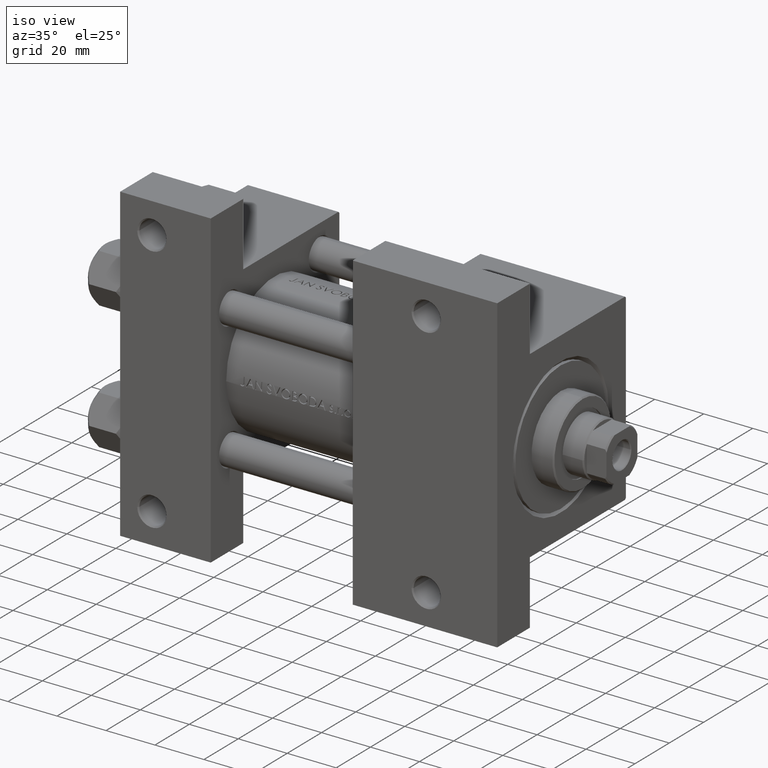
[diagram: clean part render]
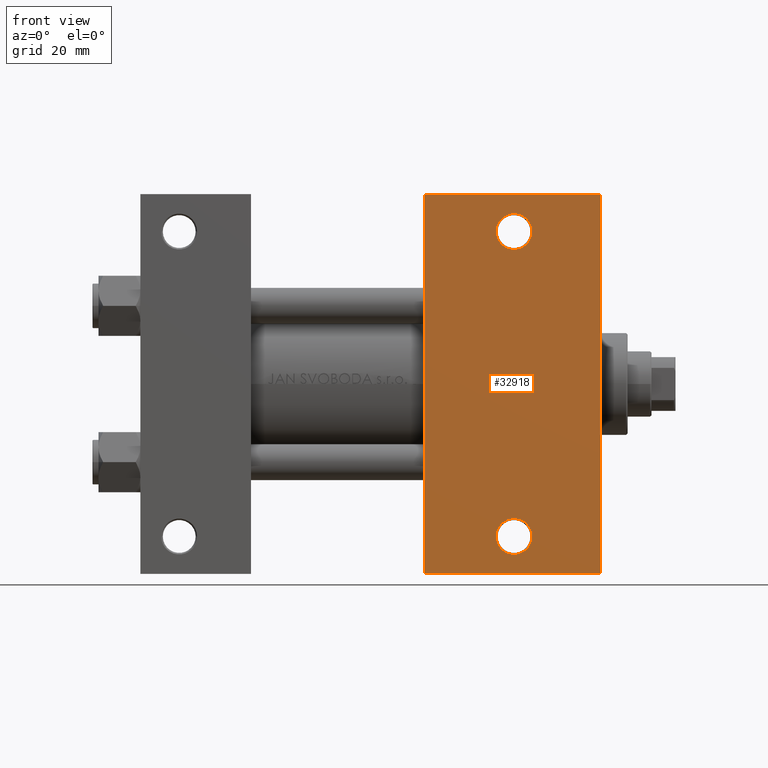
[diagram: tour spotlight — one face highlighted and labeled with its STEP entity id]
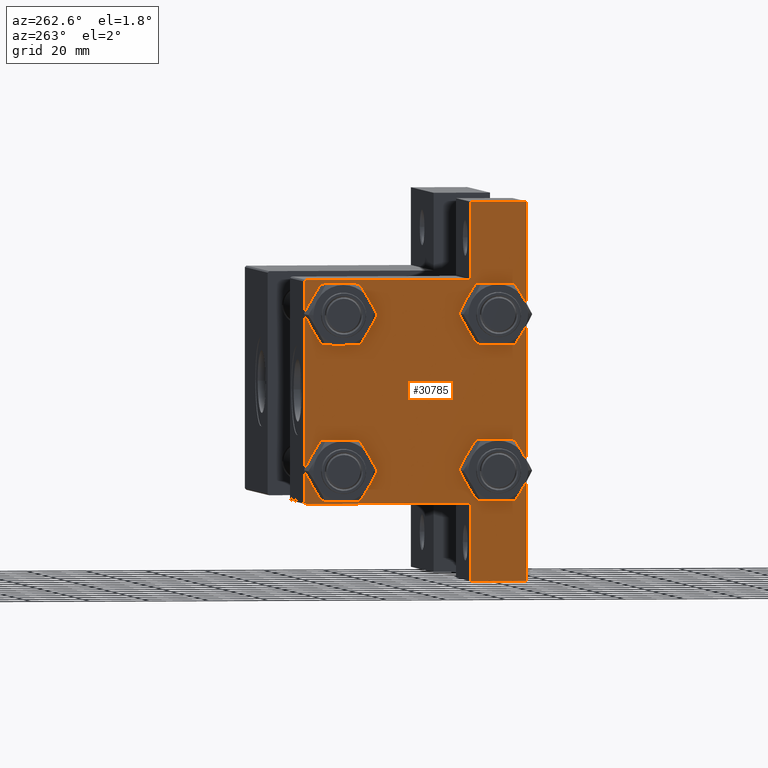
[diagram: tour spotlight — one face highlighted and labeled with its STEP entity id]
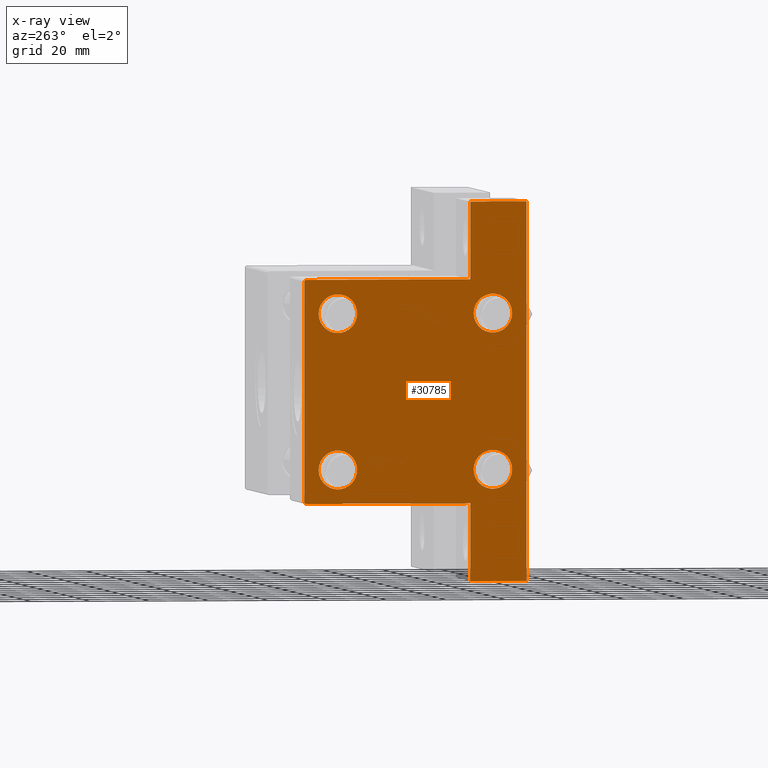
[diagram: x-ray of the same camera — body ghosted, this tour face saturated]
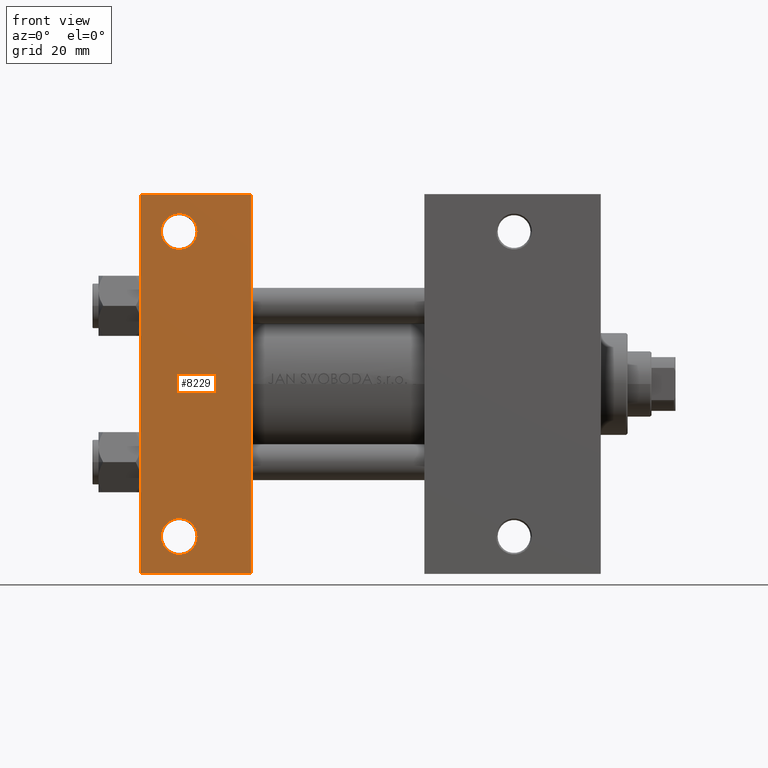
[diagram: tour spotlight — one face highlighted and labeled with its STEP entity id]
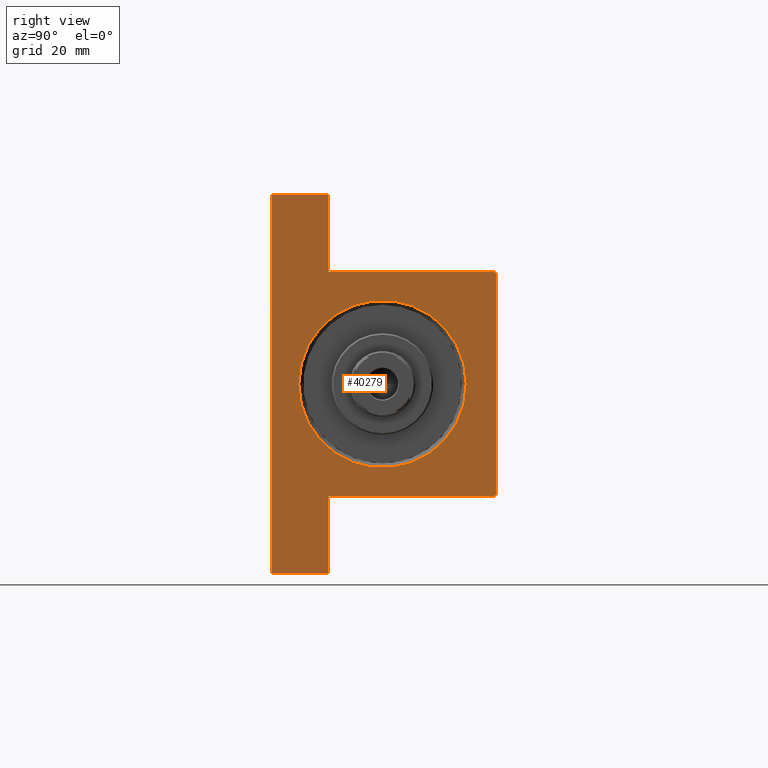
[diagram: tour spotlight — one face highlighted and labeled with its STEP entity id]
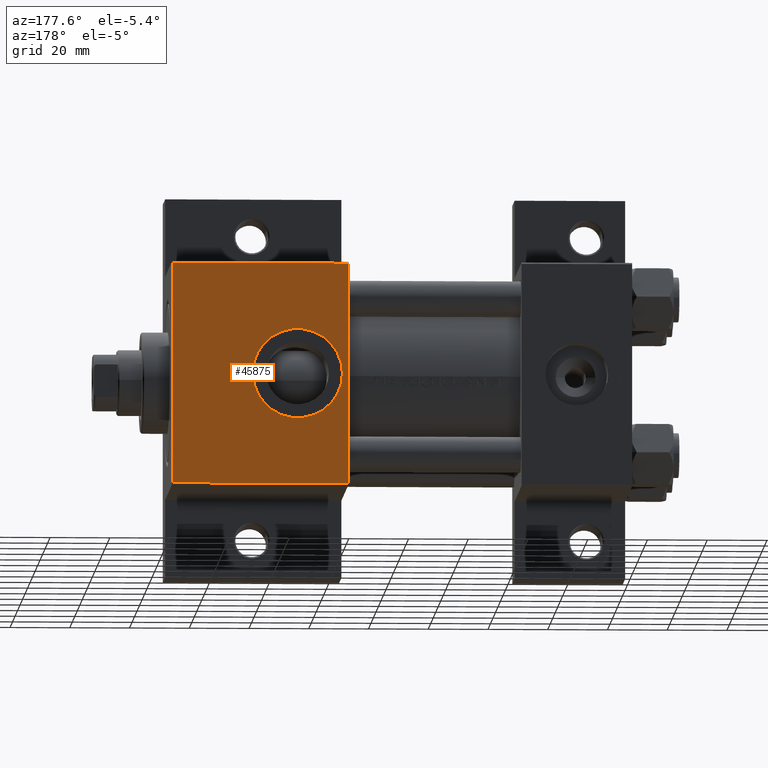
[diagram: tour spotlight — one face highlighted and labeled with its STEP entity id]
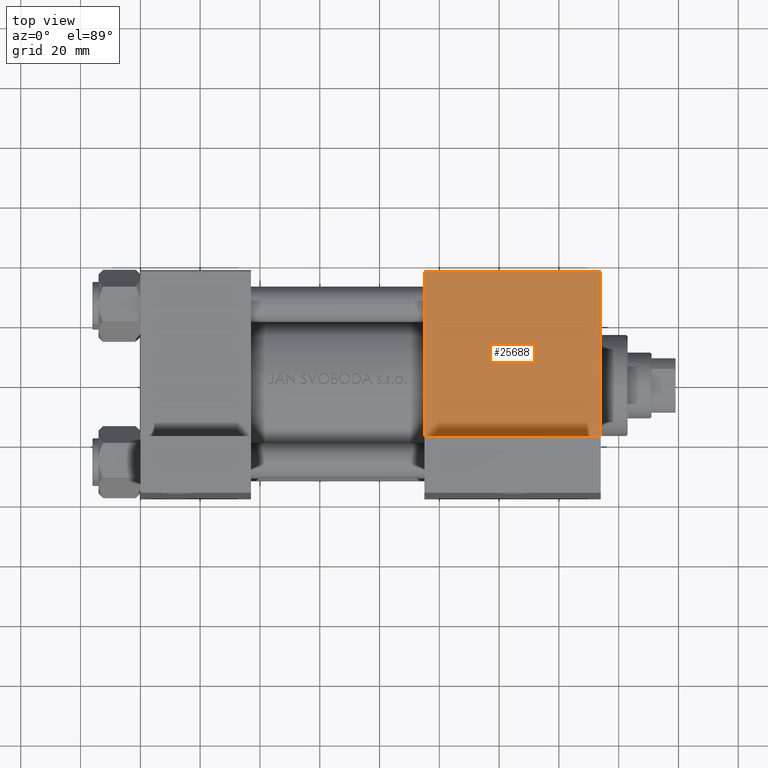
[diagram: tour spotlight — one face highlighted and labeled with its STEP entity id]
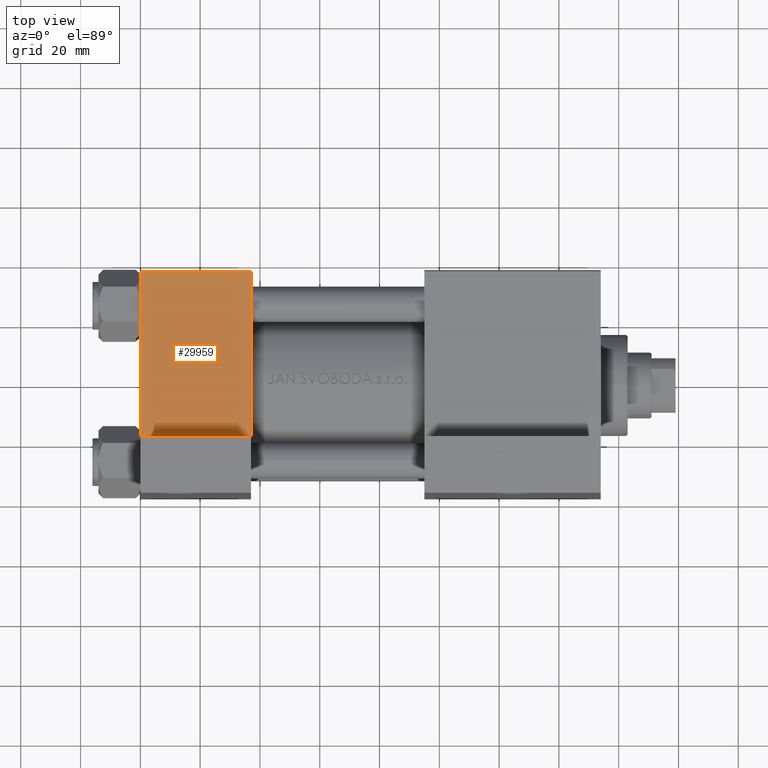
[diagram: tour spotlight — one face highlighted and labeled with its STEP entity id]
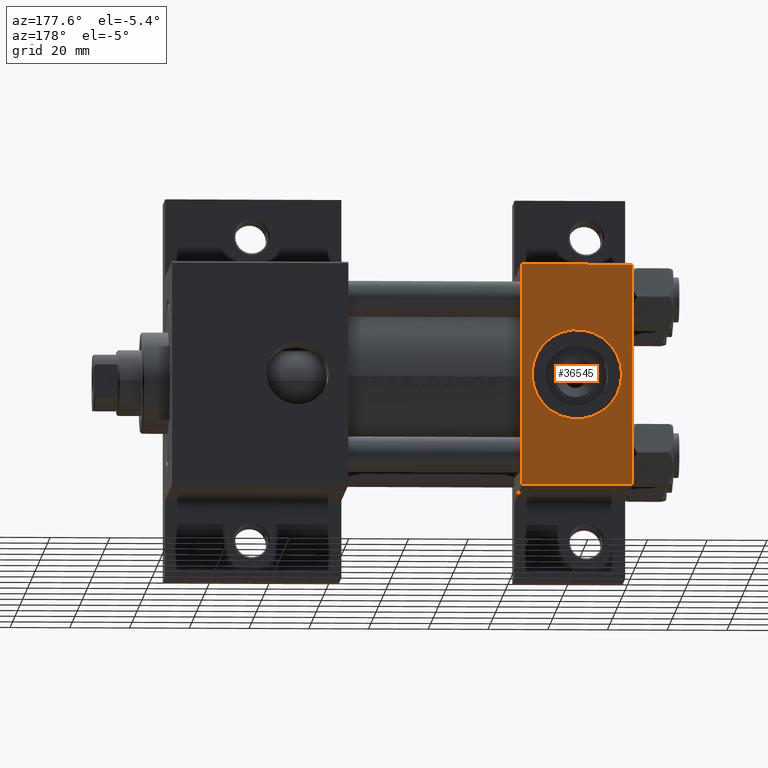
[diagram: tour spotlight — one face highlighted and labeled with its STEP entity id]
A machine part: a face-by-face anatomy tour. The part has 1088 B-rep faces; the first image is the clean iso view, then the 8 largest visible faces are spotlighted one at a time (largest first), each with its STEP entity span.

Face 1 — front view, entity #32918. In plain terms, the highlighted planar face has unit normal (0, -1, 0).
Definition (entity closure, byte-faithful):
#2527 = AXIS2_PLACEMENT_3D ( 'NONE', #36349, #47396, #11578 ) ;
#4443 = CARTESIAN_POINT ( 'NONE',  ( 125.0000000000000000, -51.00000000000000000, -37.50000000000000000 ) ) ;
#4916 = FACE_BOUND ( 'NONE', #6570, .T. ) ;
#5152 = FACE_BOUND ( 'NONE', #27355, .T. ) ;
#5170 = ORIENTED_EDGE ( 'NONE', *, *, #40830, .T. ) ;
#5405 = EDGE_LOOP ( 'NONE', ( #12305, #45235, #9024, #40702 ) ) ;
#6570 = EDGE_LOOP ( 'NONE', ( #44489, #43507 ) ) ;
#6990 = CARTESIAN_POINT ( 'NONE',  ( 154.0000000000000000, 63.50000000000000000, -37.50000000000000000 ) ) ;
#7680 = DIRECTION ( 'NONE',  ( -0.000000000000000000, -0.000000000000000000, 1.000000000000000000 ) ) ;
#8382 = LINE ( 'NONE', #25932, #45486 ) ;
#9024 = ORIENTED_EDGE ( 'NONE', *, *, #20836, .T. ) ;
#10201 = DIRECTION ( 'NONE',  ( 0.000000000000000000, -1.000000000000000000, 0.000000000000000000 ) ) ;
#10609 = LINE ( 'NONE', #25269, #16944 ) ;
#10723 = CIRCLE ( 'NONE', #32972, 5.999499999999990507 ) ;
#10904 = CARTESIAN_POINT ( 'NONE',  ( 153.9999999999999716, -63.50000000000002842, -37.50000000000000000 ) ) ;
#11328 = CARTESIAN_POINT ( 'NONE',  ( 95.00000000000000000, 63.50000000000000000, -37.50000000000000000 ) ) ;
#11502 = DIRECTION ( 'NONE',  ( 0.000000000000000000, -1.000000000000000000, 0.000000000000000000 ) ) ;
#11578 = DIRECTION ( 'NONE',  ( -1.000000000000000000, 0.000000000000000000, 0.000000000000000000 ) ) ;
#11889 = CARTESIAN_POINT ( 'NONE',  ( 154.0000000000000000, 37.50000000000000000, -37.50000000000000000 ) ) ;
#12170 = LINE ( 'NONE', #14275, #32673 ) ;
#12305 = ORIENTED_EDGE ( 'NONE', *, *, #47097, .F. ) ;
#12422 = VERTEX_POINT ( 'NONE', #13920 ) ;
#13229 = AXIS2_PLACEMENT_3D ( 'NONE', #46975, #25118, #28479 ) ;
#13475 = EDGE_CURVE ( 'NONE', #16655, #15010, #10723, .T. ) ;
#13920 = CARTESIAN_POINT ( 'NONE',  ( 130.9994999999999834, 50.99999999999999289, -37.50000000000000000 ) ) ;
#14275 = CARTESIAN_POINT ( 'NONE',  ( 95.00000000000000000, 37.50000000000000000, -37.50000000000000000 ) ) ;
#15010 = VERTEX_POINT ( 'NONE', #47522 ) ;
#15486 = DIRECTION ( 'NONE',  ( -1.000000000000000000, 0.000000000000000000, 0.000000000000000000 ) ) ;
#16655 = VERTEX_POINT ( 'NONE', #27696 ) ;
#16944 = VECTOR ( 'NONE', #33911, 1000.000000000000000 ) ;
#19091 = FACE_OUTER_BOUND ( 'NONE', #5405, .T. ) ;
#19576 = DIRECTION ( 'NONE',  ( 0.000000000000000000, 0.000000000000000000, -1.000000000000000000 ) ) ;
#19605 = VERTEX_POINT ( 'NONE', #6990 ) ;
#20836 = EDGE_CURVE ( 'NONE', #19605, #35602, #8382, .T. ) ;
#21673 = CIRCLE ( 'NONE', #13229, 5.999500000000004718 ) ;
#22102 = VERTEX_POINT ( 'NONE', #42475 ) ;
#22186 = VERTEX_POINT ( 'NONE', #25393 ) ;
#22912 = EDGE_CURVE ( 'NONE', #35602, #22186, #32623, .T. ) ;
#24009 = EDGE_CURVE ( 'NONE', #22102, #12422, #21673, .T. ) ;
#25118 = DIRECTION ( 'NONE',  ( -0.000000000000000000, -0.000000000000000000, 1.000000000000000000 ) ) ;
#25269 = CARTESIAN_POINT ( 'NONE',  ( 95.00000000000000000, 63.50000000000000000, -37.50000000000000000 ) ) ;
#25393 = CARTESIAN_POINT ( 'NONE',  ( 94.99999999999998579, -63.50000000000000000, -37.50000000000000000 ) ) ;
#25932 = CARTESIAN_POINT ( 'NONE',  ( 154.0000000000000000, 37.50000000000000000, -37.50000000000000000 ) ) ;
#27355 = EDGE_LOOP ( 'NONE', ( #28257, #5170 ) ) ;
#27696 = CARTESIAN_POINT ( 'NONE',  ( 119.0005000000000024, -51.00000000000000000, -37.50000000000000000 ) ) ;
#28257 = ORIENTED_EDGE ( 'NONE', *, *, #24009, .T. ) ;
#28479 = DIRECTION ( 'NONE',  ( -1.000000000000000000, 0.000000000000000000, 0.000000000000000000 ) ) ;
#30150 = DIRECTION ( 'NONE',  ( -1.000000000000000000, 4.704334850106596780E-16, -0.000000000000000000 ) ) ;
#30407 = PLANE ( 'NONE',  #41947 ) ;
#32623 = LINE ( 'NONE', #33522, #44649 ) ;
#32673 = VECTOR ( 'NONE', #10201, 1000.000000000000000 ) ;
#32918 = ADVANCED_FACE ( 'NONE', ( #5152, #4916, #19091 ), #30407, .T. ) ;
#32972 = AXIS2_PLACEMENT_3D ( 'NONE', #40598, #7680, #33644 ) ;
#33522 = CARTESIAN_POINT ( 'NONE',  ( 94.99999999999998579, -63.50000000000000000, -37.50000000000000000 ) ) ;
#33644 = DIRECTION ( 'NONE',  ( -1.000000000000000000, 0.000000000000000000, 0.000000000000000000 ) ) ;
#33765 = DIRECTION ( 'NONE',  ( -0.000000000000000000, -0.000000000000000000, 1.000000000000000000 ) ) ;
#33911 = DIRECTION ( 'NONE',  ( 1.000000000000000000, 0.000000000000000000, 0.000000000000000000 ) ) ;
#34003 = DIRECTION ( 'NONE',  ( -1.000000000000000000, 0.000000000000000000, -0.000000000000000000 ) ) ;
#35019 = EDGE_CURVE ( 'NONE', #45558, #19605, #10609, .T. ) ;
#35602 = VERTEX_POINT ( 'NONE', #10904 ) ;
#36349 = CARTESIAN_POINT ( 'NONE',  ( 124.9999999999999858, 50.99999999999999289, -37.50000000000000000 ) ) ;
#36765 = EDGE_CURVE ( 'NONE', #15010, #16655, #36963, .T. ) ;
#36963 = CIRCLE ( 'NONE', #46144, 5.999499999999990507 ) ;
#40144 = CIRCLE ( 'NONE', #2527, 5.999500000000004718 ) ;
#40598 = CARTESIAN_POINT ( 'NONE',  ( 125.0000000000000000, -51.00000000000000000, -37.50000000000000000 ) ) ;
#40702 = ORIENTED_EDGE ( 'NONE', *, *, #22912, .T. ) ;
#40830 = EDGE_CURVE ( 'NONE', #12422, #22102, #40144, .T. ) ;
#41947 = AXIS2_PLACEMENT_3D ( 'NONE', #11889, #19576, #34003 ) ;
#42475 = CARTESIAN_POINT ( 'NONE',  ( 119.0004999999999882, 50.99999999999999289, -37.50000000000000000 ) ) ;
#43507 = ORIENTED_EDGE ( 'NONE', *, *, #36765, .T. ) ;
#44489 = ORIENTED_EDGE ( 'NONE', *, *, #13475, .T. ) ;
#44649 = VECTOR ( 'NONE', #30150, 1000.000000000000000 ) ;
#45235 = ORIENTED_EDGE ( 'NONE', *, *, #35019, .T. ) ;
#45486 = VECTOR ( 'NONE', #11502, 1000.000000000000000 ) ;
#45558 = VERTEX_POINT ( 'NONE', #11328 ) ;
#46144 = AXIS2_PLACEMENT_3D ( 'NONE', #4443, #33765, #15486 ) ;
#46975 = CARTESIAN_POINT ( 'NONE',  ( 124.9999999999999858, 50.99999999999999289, -37.50000000000000000 ) ) ;
#47097 = EDGE_CURVE ( 'NONE', #45558, #22186, #12170, .T. ) ;
#47396 = DIRECTION ( 'NONE',  ( -0.000000000000000000, -0.000000000000000000, 1.000000000000000000 ) ) ;
#47522 = CARTESIAN_POINT ( 'NONE',  ( 130.9994999999999834, -51.00000000000000000, -37.50000000000000000 ) ) ;

Face 2 — auxiliary view, entity #30785. An x-ray twin of the same camera follows (body ghosted, this face saturated) — the face is partly hidden behind the body. In plain terms, the highlighted planar face has unit normal (-1, 0, -0).
Definition (entity closure, byte-faithful):
#145 = AXIS2_PLACEMENT_3D ( 'NONE', #39173, #7207, #14167 ) ;
#707 = DIRECTION ( 'NONE',  ( 0.000000000000000000, 0.000000000000000000, 1.000000000000000000 ) ) ;
#1280 = DIRECTION ( 'NONE',  ( -0.000000000000000000, 0.7071067811865474617, 0.7071067811865474617 ) ) ;
#1307 = EDGE_CURVE ( 'NONE', #15175, #39459, #43674, .T. ) ;
#1597 = DIRECTION ( 'NONE',  ( 1.000000000000000000, -0.000000000000000000, 0.000000000000000000 ) ) ;
#2073 = DIRECTION ( 'NONE',  ( 0.000000000000000000, 0.000000000000000000, 1.000000000000000000 ) ) ;
#2453 = DIRECTION ( 'NONE',  ( 0.000000000000000000, 0.000000000000000000, 1.000000000000000000 ) ) ;
#2894 = CARTESIAN_POINT ( 'NONE',  ( 0.000000000000000000, 37.49999999999999289, 37.50000000000000000 ) ) ;
#3043 = CARTESIAN_POINT ( 'NONE',  ( 3.977209754999744250E-16, -63.49999999999998579, -18.50000000000000355 ) ) ;
#3136 = AXIS2_PLACEMENT_3D ( 'NONE', #31554, #16424, #2453 ) ;
#3223 = ORIENTED_EDGE ( 'NONE', *, *, #39617, .T. ) ;
#3683 = ORIENTED_EDGE ( 'NONE', *, *, #5965, .T. ) ;
#3824 = EDGE_CURVE ( 'NONE', #36729, #33306, #22829, .T. ) ;
#3985 = CIRCLE ( 'NONE', #8594, 6.500000000000015987 ) ;
#4000 = CIRCLE ( 'NONE', #145, 6.500000000000015987 ) ;
#4159 = VECTOR ( 'NONE', #33068, 1000.000000000000000 ) ;
#4213 = ORIENTED_EDGE ( 'NONE', *, *, #1307, .T. ) ;
#4405 = VERTEX_POINT ( 'NONE', #29833 ) ;
#5506 = VERTEX_POINT ( 'NONE', #10010 ) ;
#5657 = EDGE_LOOP ( 'NONE', ( #8075, #32794 ) ) ;
#5764 = VECTOR ( 'NONE', #18205, 1000.000000000000000 ) ;
#5965 = EDGE_CURVE ( 'NONE', #4405, #14966, #33641, .T. ) ;
#6235 = EDGE_CURVE ( 'NONE', #17509, #22536, #38241, .T. ) ;
#6549 = FACE_BOUND ( 'NONE', #11903, .T. ) ;
#6979 = DIRECTION ( 'NONE',  ( 0.000000000000000000, 0.000000000000000000, -1.000000000000000000 ) ) ;
#7022 = FACE_BOUND ( 'NONE', #5657, .T. ) ;
#7207 = DIRECTION ( 'NONE',  ( 1.000000000000000000, -0.000000000000000000, 0.000000000000000000 ) ) ;
#7236 = CARTESIAN_POINT ( 'NONE',  ( 0.000000000000000000, 37.49999999999999289, 37.00000000000000000 ) ) ;
#7984 = AXIS2_PLACEMENT_3D ( 'NONE', #19638, #1597, #2073 ) ;
#8075 = ORIENTED_EDGE ( 'NONE', *, *, #23363, .T. ) ;
#8307 = ORIENTED_EDGE ( 'NONE', *, *, #3824, .T. ) ;
#8594 = AXIS2_PLACEMENT_3D ( 'NONE', #17668, #46752, #9990 ) ;
#9198 = CARTESIAN_POINT ( 'NONE',  ( 1.595073532467135757E-14, 63.50000000000001421, -18.50000000000000355 ) ) ;
#9199 = VECTOR ( 'NONE', #33282, 1000.000000000000000 ) ;
#9990 = DIRECTION ( 'NONE',  ( 0.000000000000000000, 0.000000000000000000, 1.000000000000000000 ) ) ;
#10010 = CARTESIAN_POINT ( 'NONE',  ( 0.000000000000000000, 26.14999999999999858, -32.65000000000001990 ) ) ;
#11566 = EDGE_CURVE ( 'NONE', #39803, #14254, #41008, .T. ) ;
#11872 = VERTEX_POINT ( 'NONE', #22920 ) ;
#11903 = EDGE_LOOP ( 'NONE', ( #3683, #24881 ) ) ;
#12280 = CIRCLE ( 'NONE', #26106, 6.500000000000015987 ) ;
#12577 = LINE ( 'NONE', #23160, #42402 ) ;
#12902 = AXIS2_PLACEMENT_3D ( 'NONE', #20986, #39239, #24825 ) ;
#13549 = EDGE_LOOP ( 'NONE', ( #27393, #3223, #16471, #31063, #35477, #21484, #4213, #34797, #37077, #23841 ) ) ;
#13878 = EDGE_CURVE ( 'NONE', #42190, #29870, #36889, .T. ) ;
#14167 = DIRECTION ( 'NONE',  ( 0.000000000000000000, 0.000000000000000000, 1.000000000000000000 ) ) ;
#14254 = VERTEX_POINT ( 'NONE', #32097 ) ;
#14761 = EDGE_CURVE ( 'NONE', #22536, #17509, #12280, .T. ) ;
#14966 = VERTEX_POINT ( 'NONE', #46571 ) ;
#15175 = VERTEX_POINT ( 'NONE', #19160 ) ;
#15216 = CARTESIAN_POINT ( 'NONE',  ( 0.000000000000000000, 37.49999999999999289, -18.49999999999999645 ) ) ;
#15487 = VECTOR ( 'NONE', #21081, 1000.000000000000000 ) ;
#16320 = VECTOR ( 'NONE', #41413, 1000.000000000000000 ) ;
#16424 = DIRECTION ( 'NONE',  ( 1.000000000000000000, -0.000000000000000000, 0.000000000000000000 ) ) ;
#16471 = ORIENTED_EDGE ( 'NONE', *, *, #13878, .F. ) ;
#16481 = VERTEX_POINT ( 'NONE', #15216 ) ;
#16968 = CARTESIAN_POINT ( 'NONE',  ( 0.000000000000000000, 26.14999999999999858, 26.15000000000000213 ) ) ;
#17350 = EDGE_CURVE ( 'NONE', #33306, #36729, #23873, .T. ) ;
#17509 = VERTEX_POINT ( 'NONE', #32143 ) ;
#17668 = CARTESIAN_POINT ( 'NONE',  ( 0.000000000000000000, 26.14999999999999858, -26.15000000000000213 ) ) ;
#17695 = VECTOR ( 'NONE', #36089, 1000.000000000000114 ) ;
#17913 = CARTESIAN_POINT ( 'NONE',  ( 0.000000000000000000, -37.00000000000000711, 37.49999999999999289 ) ) ;
#17964 = CARTESIAN_POINT ( 'NONE',  ( 0.000000000000000000, 26.14999999999999858, 19.64999999999998437 ) ) ;
#18205 = DIRECTION ( 'NONE',  ( 0.000000000000000000, -1.734723475976806848E-16, -1.000000000000000000 ) ) ;
#19160 = CARTESIAN_POINT ( 'NONE',  ( 1.595073532467135441E-14, 63.50000000000000000, -18.50000000000000355 ) ) ;
#19281 = ORIENTED_EDGE ( 'NONE', *, *, #6235, .T. ) ;
#19517 = VERTEX_POINT ( 'NONE', #7236 ) ;
#19638 = CARTESIAN_POINT ( 'NONE',  ( 0.000000000000000000, -26.14999999999999147, 26.15000000000000924 ) ) ;
#20024 = LINE ( 'NONE', #34459, #30932 ) ;
#20907 = CARTESIAN_POINT ( 'NONE',  ( 0.000000000000000000, -37.50000000000000711, 36.99999999999999289 ) ) ;
#20986 = CARTESIAN_POINT ( 'NONE',  ( 0.000000000000000000, -26.14999999999999147, -26.15000000000000924 ) ) ;
#21081 = DIRECTION ( 'NONE',  ( 4.278042683914906889E-17, -1.000000000000000000, 0.000000000000000000 ) ) ;
#21281 = AXIS2_PLACEMENT_3D ( 'NONE', #16968, #41519, #31409 ) ;
#21484 = ORIENTED_EDGE ( 'NONE', *, *, #24983, .F. ) ;
#21689 = CARTESIAN_POINT ( 'NONE',  ( 0.000000000000000000, 0.000000000000000000, 0.000000000000000000 ) ) ;
#21935 = PLANE ( 'NONE',  #22670 ) ;
#22295 = EDGE_CURVE ( 'NONE', #14254, #30113, #24679, .T. ) ;
#22536 = VERTEX_POINT ( 'NONE', #26425 ) ;
#22633 = LINE ( 'NONE', #9198, #16320 ) ;
#22670 = AXIS2_PLACEMENT_3D ( 'NONE', #21689, #39942, #25774 ) ;
#22829 = CIRCLE ( 'NONE', #21281, 6.500000000000023093 ) ;
#22920 = CARTESIAN_POINT ( 'NONE',  ( 3.977209754999747208E-16, -63.50000000000000000, -37.49999999999999289 ) ) ;
#23160 = CARTESIAN_POINT ( 'NONE',  ( -0.000000000000000000, -37.25000000000000000, 37.25000000000000000 ) ) ;
#23363 = EDGE_CURVE ( 'NONE', #36782, #5506, #4000, .T. ) ;
#23841 = ORIENTED_EDGE ( 'NONE', *, *, #22295, .F. ) ;
#23873 = CIRCLE ( 'NONE', #3136, 6.500000000000023093 ) ;
#24658 = LINE ( 'NONE', #41232, #4159 ) ;
#24679 = LINE ( 'NONE', #3043, #15487 ) ;
#24776 = DIRECTION ( 'NONE',  ( 1.000000000000000000, -0.000000000000000000, 0.000000000000000000 ) ) ;
#24825 = DIRECTION ( 'NONE',  ( 0.000000000000000000, 0.000000000000000000, 1.000000000000000000 ) ) ;
#24881 = ORIENTED_EDGE ( 'NONE', *, *, #28449, .T. ) ;
#24983 = EDGE_CURVE ( 'NONE', #15175, #16481, #22633, .T. ) ;
#25020 = DIRECTION ( 'NONE',  ( 0.000000000000000000, 0.000000000000000000, 1.000000000000000000 ) ) ;
#25774 = DIRECTION ( 'NONE',  ( -0.000000000000000000, 0.000000000000000000, 1.000000000000000000 ) ) ;
#26077 = CARTESIAN_POINT ( 'NONE',  ( 0.000000000000000000, 26.14999999999999858, 32.65000000000002700 ) ) ;
#26106 = AXIS2_PLACEMENT_3D ( 'NONE', #40853, #40138, #707 ) ;
#26425 = CARTESIAN_POINT ( 'NONE',  ( 0.000000000000000000, -26.14999999999999147, -19.64999999999999503 ) ) ;
#27393 = ORIENTED_EDGE ( 'NONE', *, *, #11566, .F. ) ;
#27554 = VECTOR ( 'NONE', #30673, 1000.000000000000000 ) ;
#28395 = CARTESIAN_POINT ( 'NONE',  ( 0.000000000000000000, 37.24999999999999289, 37.24999999999999289 ) ) ;
#28449 = EDGE_CURVE ( 'NONE', #14966, #4405, #28697, .T. ) ;
#28623 = CARTESIAN_POINT ( 'NONE',  ( 0.000000000000000000, -26.14999999999999147, 26.15000000000000924 ) ) ;
#28697 = CIRCLE ( 'NONE', #7984, 6.500000000000023093 ) ;
#29833 = CARTESIAN_POINT ( 'NONE',  ( 0.000000000000000000, -26.14999999999999147, 32.65000000000003411 ) ) ;
#29870 = VERTEX_POINT ( 'NONE', #17913 ) ;
#30113 = VERTEX_POINT ( 'NONE', #44287 ) ;
#30140 = DIRECTION ( 'NONE',  ( 0.000000000000000000, -1.000000000000000000, -9.251858538542972814E-17 ) ) ;
#30540 = EDGE_LOOP ( 'NONE', ( #8307, #45315 ) ) ;
#30673 = DIRECTION ( 'NONE',  ( 0.000000000000000000, 9.251858538542971581E-17, -1.000000000000000000 ) ) ;
#30785 = ADVANCED_FACE ( 'NONE', ( #6549, #32986, #7022, #32751, #36112 ), #21935, .T. ) ;
#30932 = VECTOR ( 'NONE', #30140, 1000.000000000000000 ) ;
#31063 = ORIENTED_EDGE ( 'NONE', *, *, #34964, .T. ) ;
#31318 = EDGE_LOOP ( 'NONE', ( #34742, #19281 ) ) ;
#31342 = CARTESIAN_POINT ( 'NONE',  ( 0.000000000000000000, 26.14999999999999858, -19.64999999999998792 ) ) ;
#31409 = DIRECTION ( 'NONE',  ( 0.000000000000000000, 0.000000000000000000, 1.000000000000000000 ) ) ;
#31554 = CARTESIAN_POINT ( 'NONE',  ( 0.000000000000000000, 26.14999999999999858, 26.15000000000000213 ) ) ;
#32097 = CARTESIAN_POINT ( 'NONE',  ( -7.145701223179004046E-16, -37.50000000000000711, -18.50000000000000355 ) ) ;
#32143 = CARTESIAN_POINT ( 'NONE',  ( 0.000000000000000000, -26.14999999999999147, -32.65000000000002700 ) ) ;
#32751 = FACE_BOUND ( 'NONE', #30540, .T. ) ;
#32794 = ORIENTED_EDGE ( 'NONE', *, *, #37690, .T. ) ;
#32805 = CARTESIAN_POINT ( 'NONE',  ( 0.000000000000000000, 37.49999999999999289, 37.50000000000000000 ) ) ;
#32986 = FACE_BOUND ( 'NONE', #31318, .T. ) ;
#33032 = CARTESIAN_POINT ( 'NONE',  ( 1.595073532467135441E-14, 63.50000000000000000, -37.50000000000002132 ) ) ;
#33068 = DIRECTION ( 'NONE',  ( 0.000000000000000000, -1.734723475976806848E-16, -1.000000000000000000 ) ) ;
#33282 = DIRECTION ( 'NONE',  ( 0.000000000000000000, -1.000000000000000000, -9.251858538542971581E-17 ) ) ;
#33306 = VERTEX_POINT ( 'NONE', #17964 ) ;
#33641 = CIRCLE ( 'NONE', #34393, 6.500000000000023093 ) ;
#34393 = AXIS2_PLACEMENT_3D ( 'NONE', #28623, #24776, #25020 ) ;
#34459 = CARTESIAN_POINT ( 'NONE',  ( 0.000000000000000000, 37.49999999999999289, -37.50000000000000000 ) ) ;
#34742 = ORIENTED_EDGE ( 'NONE', *, *, #14761, .T. ) ;
#34797 = ORIENTED_EDGE ( 'NONE', *, *, #39570, .T. ) ;
#34964 = EDGE_CURVE ( 'NONE', #42190, #19517, #36332, .T. ) ;
#35477 = ORIENTED_EDGE ( 'NONE', *, *, #37131, .T. ) ;
#36089 = DIRECTION ( 'NONE',  ( 0.000000000000000000, 0.7071067811865474617, -0.7071067811865474617 ) ) ;
#36112 = FACE_OUTER_BOUND ( 'NONE', #13549, .T. ) ;
#36243 = CARTESIAN_POINT ( 'NONE',  ( 1.595073532467135441E-14, 63.50000000000001421, 26.72167621838005047 ) ) ;
#36332 = LINE ( 'NONE', #28395, #17695 ) ;
#36729 = VERTEX_POINT ( 'NONE', #26077 ) ;
#36782 = VERTEX_POINT ( 'NONE', #31342 ) ;
#36889 = LINE ( 'NONE', #32805, #9199 ) ;
#37077 = ORIENTED_EDGE ( 'NONE', *, *, #43959, .F. ) ;
#37131 = EDGE_CURVE ( 'NONE', #19517, #16481, #39668, .T. ) ;
#37690 = EDGE_CURVE ( 'NONE', #5506, #36782, #3985, .T. ) ;
#38128 = CARTESIAN_POINT ( 'NONE',  ( 0.000000000000000000, -37.50000000000000711, 37.49999999999999289 ) ) ;
#38241 = CIRCLE ( 'NONE', #12902, 6.500000000000015987 ) ;
#39173 = CARTESIAN_POINT ( 'NONE',  ( 0.000000000000000000, 26.14999999999999858, -26.15000000000000213 ) ) ;
#39239 = DIRECTION ( 'NONE',  ( 1.000000000000000000, -0.000000000000000000, 0.000000000000000000 ) ) ;
#39459 = VERTEX_POINT ( 'NONE', #33032 ) ;
#39570 = EDGE_CURVE ( 'NONE', #39459, #11872, #20024, .T. ) ;
#39617 = EDGE_CURVE ( 'NONE', #39803, #29870, #12577, .T. ) ;
#39668 = LINE ( 'NONE', #2894, #43873 ) ;
#39803 = VERTEX_POINT ( 'NONE', #20907 ) ;
#39942 = DIRECTION ( 'NONE',  ( -1.000000000000000000, 0.000000000000000000, -0.000000000000000000 ) ) ;
#40138 = DIRECTION ( 'NONE',  ( 1.000000000000000000, -0.000000000000000000, 0.000000000000000000 ) ) ;
#40853 = CARTESIAN_POINT ( 'NONE',  ( 0.000000000000000000, -26.14999999999999147, -26.15000000000000924 ) ) ;
#41008 = LINE ( 'NONE', #38128, #27554 ) ;
#41232 = CARTESIAN_POINT ( 'NONE',  ( 3.977209754999747208E-16, -63.49999999999998579, 26.72167621838007889 ) ) ;
#41413 = DIRECTION ( 'NONE',  ( -2.877097866686192789E-16, -1.000000000000000000, 0.000000000000000000 ) ) ;
#41519 = DIRECTION ( 'NONE',  ( 1.000000000000000000, -0.000000000000000000, 0.000000000000000000 ) ) ;
#42190 = VERTEX_POINT ( 'NONE', #42833 ) ;
#42402 = VECTOR ( 'NONE', #1280, 1000.000000000000114 ) ;
#42833 = CARTESIAN_POINT ( 'NONE',  ( 0.000000000000000000, 36.99999999999999289, 37.50000000000000000 ) ) ;
#43674 = LINE ( 'NONE', #36243, #5764 ) ;
#43873 = VECTOR ( 'NONE', #6979, 1000.000000000000000 ) ;
#43959 = EDGE_CURVE ( 'NONE', #30113, #11872, #24658, .T. ) ;
#44287 = CARTESIAN_POINT ( 'NONE',  ( 3.977209754999747208E-16, -63.50000000000000000, -18.50000000000000355 ) ) ;
#45315 = ORIENTED_EDGE ( 'NONE', *, *, #17350, .T. ) ;
#46571 = CARTESIAN_POINT ( 'NONE',  ( 0.000000000000000000, -26.14999999999999147, 19.64999999999999147 ) ) ;
#46752 = DIRECTION ( 'NONE',  ( 1.000000000000000000, -0.000000000000000000, 0.000000000000000000 ) ) ;

Face 3 — front view, entity #8229. In plain terms, the highlighted planar face has unit normal (0, -1, -0).
Definition (entity closure, byte-faithful):
#187 = EDGE_LOOP ( 'NONE', ( #30449, #12711 ) ) ;
#1790 = CARTESIAN_POINT ( 'NONE',  ( 18.99950000000001538, -51.00000000000001421, -37.50000000000000711 ) ) ;
#2007 = VECTOR ( 'NONE', #40251, 1000.000000000000000 ) ;
#2108 = CIRCLE ( 'NONE', #28964, 5.999499999999990507 ) ;
#2162 = AXIS2_PLACEMENT_3D ( 'NONE', #40786, #22770, #11708 ) ;
#3756 = EDGE_CURVE ( 'NONE', #11505, #16989, #2108, .T. ) ;
#5648 = ORIENTED_EDGE ( 'NONE', *, *, #46335, .T. ) ;
#7047 = VECTOR ( 'NONE', #10508, 1000.000000000000000 ) ;
#7829 = CARTESIAN_POINT ( 'NONE',  ( 37.00000000000000000, -63.50000000000000000, -37.49999999999999289 ) ) ;
#8095 = CARTESIAN_POINT ( 'NONE',  ( 7.000500000000006828, 50.99999999999996447, -37.50000000000000000 ) ) ;
#8229 = ADVANCED_FACE ( 'NONE', ( #35800, #9838, #46600 ), #38701, .T. ) ;
#8617 = ORIENTED_EDGE ( 'NONE', *, *, #42951, .T. ) ;
#9237 = DIRECTION ( 'NONE',  ( 0.000000000000000000, -1.000000000000000000, -9.251858538542972814E-17 ) ) ;
#9475 = EDGE_CURVE ( 'NONE', #16989, #11505, #25169, .T. ) ;
#9838 = FACE_BOUND ( 'NONE', #15019, .T. ) ;
#10508 = DIRECTION ( 'NONE',  ( 1.000000000000000000, 0.000000000000000000, 0.000000000000000000 ) ) ;
#10693 = DIRECTION ( 'NONE',  ( -0.000000000000000000, -9.251858538542972814E-17, 1.000000000000000000 ) ) ;
#10934 = CARTESIAN_POINT ( 'NONE',  ( 3.977209754999747208E-16, -63.50000000000000000, -37.49999999999999289 ) ) ;
#11011 = DIRECTION ( 'NONE',  ( 0.000000000000000000, 1.000000000000000000, 0.000000000000000000 ) ) ;
#11423 = AXIS2_PLACEMENT_3D ( 'NONE', #38929, #46836, #42756 ) ;
#11505 = VERTEX_POINT ( 'NONE', #45087 ) ;
#11708 = DIRECTION ( 'NONE',  ( 0.000000000000000000, 1.000000000000000000, 0.000000000000000000 ) ) ;
#11872 = VERTEX_POINT ( 'NONE', #22920 ) ;
#12711 = ORIENTED_EDGE ( 'NONE', *, *, #3756, .T. ) ;
#14863 = VECTOR ( 'NONE', #9237, 1000.000000000000000 ) ;
#15019 = EDGE_LOOP ( 'NONE', ( #5648, #19738 ) ) ;
#16907 = LINE ( 'NONE', #24355, #14863 ) ;
#16924 = ORIENTED_EDGE ( 'NONE', *, *, #22764, .T. ) ;
#16989 = VERTEX_POINT ( 'NONE', #8095 ) ;
#19738 = ORIENTED_EDGE ( 'NONE', *, *, #28609, .T. ) ;
#20024 = LINE ( 'NONE', #34459, #30932 ) ;
#21258 = DIRECTION ( 'NONE',  ( -0.000000000000000000, -9.251858538542972814E-17, 1.000000000000000000 ) ) ;
#21803 = CARTESIAN_POINT ( 'NONE',  ( 7.000499999999979295, -51.00000000000001421, -37.50000000000000711 ) ) ;
#22764 = EDGE_CURVE ( 'NONE', #39459, #35244, #32147, .T. ) ;
#22770 = DIRECTION ( 'NONE',  ( -0.000000000000000000, -9.251858538542972814E-17, 1.000000000000000000 ) ) ;
#22920 = CARTESIAN_POINT ( 'NONE',  ( 3.977209754999747208E-16, -63.50000000000000000, -37.49999999999999289 ) ) ;
#24137 = CIRCLE ( 'NONE', #36422, 5.999500000000018929 ) ;
#24161 = AXIS2_PLACEMENT_3D ( 'NONE', #43345, #21258, #35676 ) ;
#24355 = CARTESIAN_POINT ( 'NONE',  ( 37.00000000000000000, 37.49999999999999289, -37.50000000000000000 ) ) ;
#25169 = CIRCLE ( 'NONE', #2162, 5.999499999999990507 ) ;
#26730 = ORIENTED_EDGE ( 'NONE', *, *, #39570, .F. ) ;
#27461 = VERTEX_POINT ( 'NONE', #21803 ) ;
#28486 = DIRECTION ( 'NONE',  ( 0.000000000000000000, 1.000000000000000000, 0.000000000000000000 ) ) ;
#28609 = EDGE_CURVE ( 'NONE', #29932, #27461, #24137, .T. ) ;
#28964 = AXIS2_PLACEMENT_3D ( 'NONE', #40562, #29526, #11011 ) ;
#29526 = DIRECTION ( 'NONE',  ( -0.000000000000000000, -9.251858538542972814E-17, 1.000000000000000000 ) ) ;
#29932 = VERTEX_POINT ( 'NONE', #1790 ) ;
#30140 = DIRECTION ( 'NONE',  ( 0.000000000000000000, -1.000000000000000000, -9.251858538542972814E-17 ) ) ;
#30449 = ORIENTED_EDGE ( 'NONE', *, *, #9475, .T. ) ;
#30932 = VECTOR ( 'NONE', #30140, 1000.000000000000000 ) ;
#31066 = ORIENTED_EDGE ( 'NONE', *, *, #32854, .T. ) ;
#32147 = LINE ( 'NONE', #42940, #7047 ) ;
#32854 = EDGE_CURVE ( 'NONE', #34225, #11872, #43844, .T. ) ;
#33032 = CARTESIAN_POINT ( 'NONE',  ( 1.595073532467135441E-14, 63.50000000000000000, -37.50000000000002132 ) ) ;
#34225 = VERTEX_POINT ( 'NONE', #7829 ) ;
#34459 = CARTESIAN_POINT ( 'NONE',  ( 0.000000000000000000, 37.49999999999999289, -37.50000000000000000 ) ) ;
#35244 = VERTEX_POINT ( 'NONE', #36689 ) ;
#35676 = DIRECTION ( 'NONE',  ( 0.000000000000000000, 1.000000000000000000, 0.000000000000000000 ) ) ;
#35800 = FACE_BOUND ( 'NONE', #187, .T. ) ;
#36422 = AXIS2_PLACEMENT_3D ( 'NONE', #43610, #10693, #28486 ) ;
#36689 = CARTESIAN_POINT ( 'NONE',  ( 37.00000000000001421, 63.50000000000000000, -37.50000000000002132 ) ) ;
#37972 = EDGE_LOOP ( 'NONE', ( #26730, #16924, #8617, #31066 ) ) ;
#38701 = PLANE ( 'NONE',  #11423 ) ;
#38929 = CARTESIAN_POINT ( 'NONE',  ( 37.00000000000000000, 37.49999999999999289, -37.50000000000000000 ) ) ;
#39459 = VERTEX_POINT ( 'NONE', #33032 ) ;
#39570 = EDGE_CURVE ( 'NONE', #39459, #11872, #20024, .T. ) ;
#40251 = DIRECTION ( 'NONE',  ( -1.000000000000000000, -0.000000000000000000, -0.000000000000000000 ) ) ;
#40562 = CARTESIAN_POINT ( 'NONE',  ( 12.99999999999999822, 50.99999999999996447, -37.50000000000000000 ) ) ;
#40786 = CARTESIAN_POINT ( 'NONE',  ( 12.99999999999999822, 50.99999999999996447, -37.50000000000000000 ) ) ;
#42756 = DIRECTION ( 'NONE',  ( 0.000000000000000000, 1.000000000000000000, 9.251858538542972814E-17 ) ) ;
#42940 = CARTESIAN_POINT ( 'NONE',  ( 1.595073532467135441E-14, 63.50000000000000000, -37.50000000000002132 ) ) ;
#42951 = EDGE_CURVE ( 'NONE', #35244, #34225, #16907, .T. ) ;
#43345 = CARTESIAN_POINT ( 'NONE',  ( 12.99999999999999822, -51.00000000000001421, -37.50000000000000711 ) ) ;
#43610 = CARTESIAN_POINT ( 'NONE',  ( 12.99999999999999822, -51.00000000000001421, -37.50000000000000711 ) ) ;
#43844 = LINE ( 'NONE', #10934, #2007 ) ;
#45087 = CARTESIAN_POINT ( 'NONE',  ( 18.99949999999998695, 50.99999999999996447, -37.50000000000000000 ) ) ;
#46335 = EDGE_CURVE ( 'NONE', #27461, #29932, #47203, .T. ) ;
#46600 = FACE_OUTER_BOUND ( 'NONE', #37972, .T. ) ;
#46836 = DIRECTION ( 'NONE',  ( 0.000000000000000000, 9.251858538542972814E-17, -1.000000000000000000 ) ) ;
#47203 = CIRCLE ( 'NONE', #24161, 5.999500000000018929 ) ;

Face 4 — right view, entity #40279. In plain terms, the highlighted planar face has unit normal (-1, 0, 0).
Definition (entity closure, byte-faithful):
#289 = ORIENTED_EDGE ( 'NONE', *, *, #41379, .T. ) ;
#1048 = CARTESIAN_POINT ( 'NONE',  ( 154.0000000000000000, 0.000000000000000000, -0.5000000000000004441 ) ) ;
#1614 = DIRECTION ( 'NONE',  ( 0.000000000000000000, 0.000000000000000000, -1.000000000000000000 ) ) ;
#1877 = EDGE_CURVE ( 'NONE', #5335, #11718, #18567, .T. ) ;
#3024 = DIRECTION ( 'NONE',  ( 0.000000000000000000, -0.7071067811865474617, 0.7071067811865474617 ) ) ;
#3542 = EDGE_CURVE ( 'NONE', #7460, #11718, #13192, .T. ) ;
#4525 = CARTESIAN_POINT ( 'NONE',  ( 153.9999999999999716, -63.50000000000002842, -18.50000000000000000 ) ) ;
#4701 = LINE ( 'NONE', #7830, #41091 ) ;
#4882 = ORIENTED_EDGE ( 'NONE', *, *, #20836, .F. ) ;
#5335 = VERTEX_POINT ( 'NONE', #18956 ) ;
#5658 = CARTESIAN_POINT ( 'NONE',  ( 153.9999999999999716, 37.50000000000000711, -18.50000000000000000 ) ) ;
#6847 = AXIS2_PLACEMENT_3D ( 'NONE', #14997, #15707, #37119 ) ;
#6990 = CARTESIAN_POINT ( 'NONE',  ( 154.0000000000000000, 63.50000000000000000, -37.50000000000000000 ) ) ;
#7460 = VERTEX_POINT ( 'NONE', #34613 ) ;
#7830 = CARTESIAN_POINT ( 'NONE',  ( 154.0000000000000000, 63.50000000000000000, -18.50000000000000000 ) ) ;
#8102 = DIRECTION ( 'NONE',  ( 0.000000000000000000, 0.000000000000000000, 1.000000000000000000 ) ) ;
#8157 = CARTESIAN_POINT ( 'NONE',  ( 154.0000000000000000, 37.00000000000000000, 37.49999999999999289 ) ) ;
#8382 = LINE ( 'NONE', #25932, #45486 ) ;
#8698 = VECTOR ( 'NONE', #31102, 1000.000000000000000 ) ;
#9161 = VECTOR ( 'NONE', #22448, 1000.000000000000000 ) ;
#9645 = DIRECTION ( 'NONE',  ( -1.067522139062650671E-15, -1.000000000000000000, 0.000000000000000000 ) ) ;
#10261 = ORIENTED_EDGE ( 'NONE', *, *, #11900, .T. ) ;
#10904 = CARTESIAN_POINT ( 'NONE',  ( 153.9999999999999716, -63.50000000000002842, -37.50000000000000000 ) ) ;
#11502 = DIRECTION ( 'NONE',  ( 0.000000000000000000, -1.000000000000000000, 0.000000000000000000 ) ) ;
#11718 = VERTEX_POINT ( 'NONE', #5658 ) ;
#11894 = EDGE_CURVE ( 'NONE', #41490, #36365, #39058, .T. ) ;
#11900 = EDGE_CURVE ( 'NONE', #25903, #39087, #14753, .T. ) ;
#11939 = DIRECTION ( 'NONE',  ( -1.000000000000000000, -0.000000000000000000, 0.000000000000000000 ) ) ;
#12666 = EDGE_CURVE ( 'NONE', #22006, #33720, #16066, .T. ) ;
#13192 = LINE ( 'NONE', #34843, #30501 ) ;
#14753 = LINE ( 'NONE', #41426, #9161 ) ;
#14997 = CARTESIAN_POINT ( 'NONE',  ( 154.0000000000000000, 0.000000000000000000, -0.5000000000000004441 ) ) ;
#15063 = EDGE_LOOP ( 'NONE', ( #43855, #36859, #22820, #289, #39097, #10261, #34565, #4882, #36544, #15954 ) ) ;
#15433 = CARTESIAN_POINT ( 'NONE',  ( 154.0000000000000000, -37.50000000000000000, 37.49999999999997868 ) ) ;
#15707 = DIRECTION ( 'NONE',  ( -1.000000000000000000, -0.000000000000000000, 0.000000000000000000 ) ) ;
#15954 = ORIENTED_EDGE ( 'NONE', *, *, #1877, .T. ) ;
#16066 = LINE ( 'NONE', #30735, #44453 ) ;
#16396 = CARTESIAN_POINT ( 'NONE',  ( 154.0000000000000000, 63.50000000000000000, -18.50000000000000000 ) ) ;
#16976 = EDGE_LOOP ( 'NONE', ( #28649, #34667 ) ) ;
#18567 = LINE ( 'NONE', #16396, #27285 ) ;
#18956 = CARTESIAN_POINT ( 'NONE',  ( 154.0000000000000000, 63.50000000000000000, -18.50000000000000000 ) ) ;
#19044 = LINE ( 'NONE', #15433, #26433 ) ;
#19605 = VERTEX_POINT ( 'NONE', #6990 ) ;
#19657 = LINE ( 'NONE', #4525, #33812 ) ;
#19879 = EDGE_CURVE ( 'NONE', #7460, #22006, #36682, .T. ) ;
#20836 = EDGE_CURVE ( 'NONE', #19605, #35602, #8382, .T. ) ;
#22006 = VERTEX_POINT ( 'NONE', #8157 ) ;
#22270 = FACE_BOUND ( 'NONE', #16976, .T. ) ;
#22448 = DIRECTION ( 'NONE',  ( -0.000000000000000000, -1.000000000000000000, -0.000000000000000000 ) ) ;
#22820 = ORIENTED_EDGE ( 'NONE', *, *, #12666, .T. ) ;
#22914 = CARTESIAN_POINT ( 'NONE',  ( 154.0000000000000000, -37.50000000000000711, -18.50000000000000355 ) ) ;
#22916 = EDGE_CURVE ( 'NONE', #36365, #41490, #46197, .T. ) ;
#23647 = CARTESIAN_POINT ( 'NONE',  ( 154.0000000000000000, -37.50000000000000000, 36.99999999999997868 ) ) ;
#23937 = AXIS2_PLACEMENT_3D ( 'NONE', #1048, #38083, #45039 ) ;
#25903 = VERTEX_POINT ( 'NONE', #22914 ) ;
#25932 = CARTESIAN_POINT ( 'NONE',  ( 154.0000000000000000, 37.50000000000000000, -37.50000000000000000 ) ) ;
#26433 = VECTOR ( 'NONE', #45002, 1000.000000000000000 ) ;
#27133 = DIRECTION ( 'NONE',  ( 0.000000000000000000, -1.000000000000000000, -1.850371707708594316E-16 ) ) ;
#27285 = VECTOR ( 'NONE', #9645, 1000.000000000000000 ) ;
#28435 = CARTESIAN_POINT ( 'NONE',  ( 154.0000000000000000, -36.99999999999997158, 37.49999999999997868 ) ) ;
#28547 = CARTESIAN_POINT ( 'NONE',  ( 153.9999999999999716, -63.50000000000002842, -18.50000000000000000 ) ) ;
#28649 = ORIENTED_EDGE ( 'NONE', *, *, #22916, .T. ) ;
#30434 = DIRECTION ( 'NONE',  ( 0.000000000000000000, 0.000000000000000000, -1.000000000000000000 ) ) ;
#30501 = VECTOR ( 'NONE', #42506, 1000.000000000000000 ) ;
#30680 = EDGE_CURVE ( 'NONE', #5335, #19605, #4701, .T. ) ;
#30735 = CARTESIAN_POINT ( 'NONE',  ( 154.0000000000000000, 37.50000000000000000, 37.49999999999999289 ) ) ;
#31086 = VERTEX_POINT ( 'NONE', #23647 ) ;
#31102 = DIRECTION ( 'NONE',  ( -0.000000000000000000, -0.7071067811865672237, -0.7071067811865279218 ) ) ;
#32264 = CARTESIAN_POINT ( 'NONE',  ( 154.0000000000000000, 3.429011037612588881E-15, 27.49999999999999645 ) ) ;
#32855 = PLANE ( 'NONE',  #33222 ) ;
#33072 = CARTESIAN_POINT ( 'NONE',  ( 154.0000000000000000, 37.00000000000000000, 37.49999999999999289 ) ) ;
#33222 = AXIS2_PLACEMENT_3D ( 'NONE', #44376, #11939, #8102 ) ;
#33720 = VERTEX_POINT ( 'NONE', #28435 ) ;
#33812 = VECTOR ( 'NONE', #1614, 1000.000000000000000 ) ;
#33933 = VECTOR ( 'NONE', #3024, 1000.000000000000114 ) ;
#33995 = LINE ( 'NONE', #45041, #8698 ) ;
#34106 = EDGE_CURVE ( 'NONE', #39087, #35602, #19657, .T. ) ;
#34565 = ORIENTED_EDGE ( 'NONE', *, *, #34106, .T. ) ;
#34613 = CARTESIAN_POINT ( 'NONE',  ( 154.0000000000000000, 37.50000000000000000, 36.99999999999999289 ) ) ;
#34667 = ORIENTED_EDGE ( 'NONE', *, *, #11894, .T. ) ;
#34843 = CARTESIAN_POINT ( 'NONE',  ( 154.0000000000000000, 37.50000000000000000, 37.49999999999999289 ) ) ;
#35602 = VERTEX_POINT ( 'NONE', #10904 ) ;
#36365 = VERTEX_POINT ( 'NONE', #40111 ) ;
#36544 = ORIENTED_EDGE ( 'NONE', *, *, #30680, .F. ) ;
#36682 = LINE ( 'NONE', #33072, #33933 ) ;
#36859 = ORIENTED_EDGE ( 'NONE', *, *, #19879, .T. ) ;
#36939 = FACE_OUTER_BOUND ( 'NONE', #15063, .T. ) ;
#37119 = DIRECTION ( 'NONE',  ( 0.000000000000000000, 0.000000000000000000, 1.000000000000000000 ) ) ;
#38083 = DIRECTION ( 'NONE',  ( -1.000000000000000000, -0.000000000000000000, 0.000000000000000000 ) ) ;
#39058 = CIRCLE ( 'NONE', #6847, 27.99999999999999645 ) ;
#39087 = VERTEX_POINT ( 'NONE', #28547 ) ;
#39097 = ORIENTED_EDGE ( 'NONE', *, *, #43202, .T. ) ;
#40111 = CARTESIAN_POINT ( 'NONE',  ( 154.0000000000000000, 0.000000000000000000, -28.49999999999999645 ) ) ;
#40279 = ADVANCED_FACE ( 'NONE', ( #22270, #36939 ), #32855, .F. ) ;
#41091 = VECTOR ( 'NONE', #30434, 1000.000000000000000 ) ;
#41379 = EDGE_CURVE ( 'NONE', #33720, #31086, #33995, .T. ) ;
#41426 = CARTESIAN_POINT ( 'NONE',  ( 153.9999999999999716, -63.50000000000002842, -18.50000000000000000 ) ) ;
#41490 = VERTEX_POINT ( 'NONE', #32264 ) ;
#42506 = DIRECTION ( 'NONE',  ( 0.000000000000000000, 0.000000000000000000, -1.000000000000000000 ) ) ;
#43202 = EDGE_CURVE ( 'NONE', #31086, #25903, #19044, .T. ) ;
#43855 = ORIENTED_EDGE ( 'NONE', *, *, #3542, .F. ) ;
#44376 = CARTESIAN_POINT ( 'NONE',  ( 154.0000000000000000, 0.000000000000000000, 0.000000000000000000 ) ) ;
#44453 = VECTOR ( 'NONE', #27133, 1000.000000000000000 ) ;
#45002 = DIRECTION ( 'NONE',  ( 0.000000000000000000, -9.251858538542972814E-17, -1.000000000000000000 ) ) ;
#45039 = DIRECTION ( 'NONE',  ( 0.000000000000000000, 0.000000000000000000, 1.000000000000000000 ) ) ;
#45041 = CARTESIAN_POINT ( 'NONE',  ( 154.0000000000000000, -37.50000000000000000, 36.99999999999997868 ) ) ;
#45486 = VECTOR ( 'NONE', #11502, 1000.000000000000000 ) ;
#46197 = CIRCLE ( 'NONE', #23937, 27.99999999999999645 ) ;

Face 5 — auxiliary view, entity #45875. In plain terms, the highlighted planar face has unit normal (0, -1, -0).
Definition (entity closure, byte-faithful):
#146 = EDGE_LOOP ( 'NONE', ( #34184, #18951, #359, #27855 ) ) ;
#359 = ORIENTED_EDGE ( 'NONE', *, *, #20539, .T. ) ;
#1152 = DIRECTION ( 'NONE',  ( 0.000000000000000000, 1.850371707708594316E-16, -1.000000000000000000 ) ) ;
#2476 = DIRECTION ( 'NONE',  ( -1.000000000000000000, 0.000000000000000000, 0.000000000000000000 ) ) ;
#2676 = AXIS2_PLACEMENT_3D ( 'NONE', #26105, #40756, #22741 ) ;
#2932 = EDGE_LOOP ( 'NONE', ( #32479, #25193 ) ) ;
#5165 = LINE ( 'NONE', #37864, #32722 ) ;
#5475 = CARTESIAN_POINT ( 'NONE',  ( 154.0000000000000000, 37.50000000000000000, 37.49999999999999289 ) ) ;
#5530 = DIRECTION ( 'NONE',  ( 1.000000000000000000, 0.000000000000000000, 0.000000000000000000 ) ) ;
#6241 = EDGE_CURVE ( 'NONE', #22006, #17789, #24354, .T. ) ;
#8157 = CARTESIAN_POINT ( 'NONE',  ( 154.0000000000000000, 37.00000000000000000, 37.49999999999999289 ) ) ;
#9686 = CARTESIAN_POINT ( 'NONE',  ( 127.0000000000000000, -6.938893903907226011E-15, 37.49999999999998579 ) ) ;
#11120 = AXIS2_PLACEMENT_3D ( 'NONE', #5475, #1152, #15823 ) ;
#12666 = EDGE_CURVE ( 'NONE', #22006, #33720, #16066, .T. ) ;
#12747 = CARTESIAN_POINT ( 'NONE',  ( 112.0000000000000000, -6.938893903907226011E-15, 37.49999999999998579 ) ) ;
#14133 = CARTESIAN_POINT ( 'NONE',  ( 95.00000000000000000, -36.99999999999997158, 37.49999999999997868 ) ) ;
#15823 = DIRECTION ( 'NONE',  ( 0.000000000000000000, 1.000000000000000000, 1.850371707708594316E-16 ) ) ;
#16066 = LINE ( 'NONE', #30735, #44453 ) ;
#17789 = VERTEX_POINT ( 'NONE', #33751 ) ;
#18951 = ORIENTED_EDGE ( 'NONE', *, *, #6241, .T. ) ;
#19829 = DIRECTION ( 'NONE',  ( 1.000000000000000000, 0.000000000000000000, 0.000000000000000000 ) ) ;
#20539 = EDGE_CURVE ( 'NONE', #17789, #44838, #39922, .T. ) ;
#20737 = EDGE_CURVE ( 'NONE', #32998, #41487, #33208, .T. ) ;
#21429 = CARTESIAN_POINT ( 'NONE',  ( 95.00000000000000000, 37.50000000000000000, 37.49999999999999289 ) ) ;
#22006 = VERTEX_POINT ( 'NONE', #8157 ) ;
#22436 = AXIS2_PLACEMENT_3D ( 'NONE', #12747, #23800, #5530 ) ;
#22741 = DIRECTION ( 'NONE',  ( 1.000000000000000000, 0.000000000000000000, 0.000000000000000000 ) ) ;
#23800 = DIRECTION ( 'NONE',  ( 0.000000000000000000, 0.000000000000000000, 1.000000000000000000 ) ) ;
#24354 = LINE ( 'NONE', #32277, #30584 ) ;
#25193 = ORIENTED_EDGE ( 'NONE', *, *, #46131, .F. ) ;
#25510 = DIRECTION ( 'NONE',  ( 0.000000000000000000, -1.000000000000000000, -1.850371707708594316E-16 ) ) ;
#26105 = CARTESIAN_POINT ( 'NONE',  ( 112.0000000000000000, -6.938893903907226011E-15, 37.49999999999998579 ) ) ;
#27123 = FACE_BOUND ( 'NONE', #2932, .T. ) ;
#27133 = DIRECTION ( 'NONE',  ( 0.000000000000000000, -1.000000000000000000, -1.850371707708594316E-16 ) ) ;
#27855 = ORIENTED_EDGE ( 'NONE', *, *, #33559, .T. ) ;
#28435 = CARTESIAN_POINT ( 'NONE',  ( 154.0000000000000000, -36.99999999999997158, 37.49999999999997868 ) ) ;
#30584 = VECTOR ( 'NONE', #2476, 1000.000000000000000 ) ;
#30735 = CARTESIAN_POINT ( 'NONE',  ( 154.0000000000000000, 37.50000000000000000, 37.49999999999999289 ) ) ;
#31100 = CIRCLE ( 'NONE', #2676, 15.00000000000000000 ) ;
#32277 = CARTESIAN_POINT ( 'NONE',  ( 95.00000000000000000, 37.00000000000000000, 37.49999999999999289 ) ) ;
#32479 = ORIENTED_EDGE ( 'NONE', *, *, #20737, .F. ) ;
#32722 = VECTOR ( 'NONE', #19829, 1000.000000000000000 ) ;
#32998 = VERTEX_POINT ( 'NONE', #9686 ) ;
#33208 = CIRCLE ( 'NONE', #22436, 15.00000000000000000 ) ;
#33559 = EDGE_CURVE ( 'NONE', #44838, #33720, #5165, .T. ) ;
#33720 = VERTEX_POINT ( 'NONE', #28435 ) ;
#33751 = CARTESIAN_POINT ( 'NONE',  ( 95.00000000000000000, 37.00000000000000000, 37.49999999999999289 ) ) ;
#34184 = ORIENTED_EDGE ( 'NONE', *, *, #12666, .F. ) ;
#37864 = CARTESIAN_POINT ( 'NONE',  ( 154.0000000000000000, -36.99999999999997158, 37.49999999999997868 ) ) ;
#38178 = FACE_OUTER_BOUND ( 'NONE', #146, .T. ) ;
#38406 = PLANE ( 'NONE',  #11120 ) ;
#39227 = CARTESIAN_POINT ( 'NONE',  ( 96.99999999999998579, -5.101923705186194844E-15, 37.49999999999998579 ) ) ;
#39922 = LINE ( 'NONE', #21429, #42381 ) ;
#40756 = DIRECTION ( 'NONE',  ( 0.000000000000000000, 0.000000000000000000, 1.000000000000000000 ) ) ;
#41487 = VERTEX_POINT ( 'NONE', #39227 ) ;
#42381 = VECTOR ( 'NONE', #25510, 1000.000000000000000 ) ;
#44453 = VECTOR ( 'NONE', #27133, 1000.000000000000000 ) ;
#44838 = VERTEX_POINT ( 'NONE', #14133 ) ;
#45875 = ADVANCED_FACE ( 'NONE', ( #27123, #38178 ), #38406, .F. ) ;
#46131 = EDGE_CURVE ( 'NONE', #41487, #32998, #31100, .T. ) ;

Face 6 — top view, entity #25688. In plain terms, the highlighted planar face has unit normal (0, -0, -1).
Definition (entity closure, byte-faithful):
#2344 = EDGE_CURVE ( 'NONE', #31086, #45809, #45301, .T. ) ;
#2731 = VECTOR ( 'NONE', #23444, 1000.000000000000000 ) ;
#6162 = DIRECTION ( 'NONE',  ( 0.000000000000000000, 9.251858538542972814E-17, 1.000000000000000000 ) ) ;
#8380 = PLANE ( 'NONE',  #29434 ) ;
#12455 = VECTOR ( 'NONE', #34908, 1000.000000000000000 ) ;
#12849 = EDGE_LOOP ( 'NONE', ( #29541, #28459, #40043, #38209 ) ) ;
#15433 = CARTESIAN_POINT ( 'NONE',  ( 154.0000000000000000, -37.50000000000000000, 37.49999999999997868 ) ) ;
#16635 = CARTESIAN_POINT ( 'NONE',  ( 95.00000000000000000, -37.50000000000000000, -18.50000000000000000 ) ) ;
#19044 = LINE ( 'NONE', #15433, #26433 ) ;
#19505 = EDGE_CURVE ( 'NONE', #45809, #30249, #31067, .T. ) ;
#20243 = CARTESIAN_POINT ( 'NONE',  ( 95.00000000000000000, -37.50000000000000000, 37.49999999999997868 ) ) ;
#22471 = CARTESIAN_POINT ( 'NONE',  ( 95.00000000000000000, -37.50000000000000000, -18.50000000000000000 ) ) ;
#22914 = CARTESIAN_POINT ( 'NONE',  ( 154.0000000000000000, -37.50000000000000711, -18.50000000000000355 ) ) ;
#23444 = DIRECTION ( 'NONE',  ( -1.000000000000000000, 0.000000000000000000, 0.000000000000000000 ) ) ;
#23647 = CARTESIAN_POINT ( 'NONE',  ( 154.0000000000000000, -37.50000000000000000, 36.99999999999997868 ) ) ;
#23745 = DIRECTION ( 'NONE',  ( 0.000000000000000000, 1.000000000000000000, -9.251858538542972814E-17 ) ) ;
#25688 = ADVANCED_FACE ( 'NONE', ( #41304 ), #8380, .F. ) ;
#25903 = VERTEX_POINT ( 'NONE', #22914 ) ;
#26433 = VECTOR ( 'NONE', #45002, 1000.000000000000000 ) ;
#28459 = ORIENTED_EDGE ( 'NONE', *, *, #2344, .T. ) ;
#28885 = EDGE_CURVE ( 'NONE', #30249, #25903, #33764, .T. ) ;
#29434 = AXIS2_PLACEMENT_3D ( 'NONE', #37703, #23745, #6162 ) ;
#29541 = ORIENTED_EDGE ( 'NONE', *, *, #43202, .F. ) ;
#30249 = VERTEX_POINT ( 'NONE', #16635 ) ;
#31067 = LINE ( 'NONE', #20243, #12455 ) ;
#31086 = VERTEX_POINT ( 'NONE', #23647 ) ;
#33764 = LINE ( 'NONE', #22471, #45649 ) ;
#34908 = DIRECTION ( 'NONE',  ( 0.000000000000000000, -9.251858538542972814E-17, -1.000000000000000000 ) ) ;
#37390 = CARTESIAN_POINT ( 'NONE',  ( 154.0000000000000000, -37.50000000000000000, 36.99999999999997868 ) ) ;
#37469 = CARTESIAN_POINT ( 'NONE',  ( 95.00000000000000000, -37.50000000000000000, 36.99999999999997868 ) ) ;
#37703 = CARTESIAN_POINT ( 'NONE',  ( 154.0000000000000000, -37.50000000000000000, 37.49999999999997868 ) ) ;
#38209 = ORIENTED_EDGE ( 'NONE', *, *, #28885, .T. ) ;
#40043 = ORIENTED_EDGE ( 'NONE', *, *, #19505, .T. ) ;
#41304 = FACE_OUTER_BOUND ( 'NONE', #12849, .T. ) ;
#43202 = EDGE_CURVE ( 'NONE', #31086, #25903, #19044, .T. ) ;
#44330 = DIRECTION ( 'NONE',  ( 1.000000000000000000, -3.528251137579948571E-16, 0.000000000000000000 ) ) ;
#45002 = DIRECTION ( 'NONE',  ( 0.000000000000000000, -9.251858538542972814E-17, -1.000000000000000000 ) ) ;
#45301 = LINE ( 'NONE', #37390, #2731 ) ;
#45649 = VECTOR ( 'NONE', #44330, 1000.000000000000000 ) ;
#45809 = VERTEX_POINT ( 'NONE', #37469 ) ;

Face 7 — top view, entity #29959. In plain terms, the highlighted planar face has unit normal (0, 0, -1).
Definition (entity closure, byte-faithful):
#1549 = FACE_OUTER_BOUND ( 'NONE', #2004, .T. ) ;
#2004 = EDGE_LOOP ( 'NONE', ( #36398, #27048, #31056, #15750 ) ) ;
#6818 = DIRECTION ( 'NONE',  ( -1.000000000000000000, 0.000000000000000000, 0.000000000000000000 ) ) ;
#8779 = CARTESIAN_POINT ( 'NONE',  ( 37.00000000000000000, -37.50000000000000711, 37.49999999999999289 ) ) ;
#9410 = VECTOR ( 'NONE', #47083, 1000.000000000000000 ) ;
#11566 = EDGE_CURVE ( 'NONE', #39803, #14254, #41008, .T. ) ;
#13691 = CARTESIAN_POINT ( 'NONE',  ( -7.145701223179000102E-16, -37.50000000000001421, -18.49999999999999645 ) ) ;
#14254 = VERTEX_POINT ( 'NONE', #32097 ) ;
#15750 = ORIENTED_EDGE ( 'NONE', *, *, #11566, .T. ) ;
#18635 = VERTEX_POINT ( 'NONE', #19811 ) ;
#19591 = DIRECTION ( 'NONE',  ( 0.000000000000000000, -9.251858538542971581E-17, 1.000000000000000000 ) ) ;
#19811 = CARTESIAN_POINT ( 'NONE',  ( 37.00000000000000000, -37.50000000000000000, -18.50000000000000355 ) ) ;
#20907 = CARTESIAN_POINT ( 'NONE',  ( 0.000000000000000000, -37.50000000000000711, 36.99999999999999289 ) ) ;
#23198 = DIRECTION ( 'NONE',  ( -0.000000000000000000, 1.000000000000000000, 9.251858538542971581E-17 ) ) ;
#24738 = VECTOR ( 'NONE', #6818, 1000.000000000000000 ) ;
#25972 = CARTESIAN_POINT ( 'NONE',  ( 37.00000000000000000, -37.50000000000000711, 37.49999999999999289 ) ) ;
#27048 = ORIENTED_EDGE ( 'NONE', *, *, #29104, .F. ) ;
#27554 = VECTOR ( 'NONE', #30673, 1000.000000000000000 ) ;
#29104 = EDGE_CURVE ( 'NONE', #34251, #18635, #32708, .T. ) ;
#29571 = AXIS2_PLACEMENT_3D ( 'NONE', #8779, #23198, #19591 ) ;
#29959 = ADVANCED_FACE ( 'NONE', ( #1549 ), #31584, .F. ) ;
#30673 = DIRECTION ( 'NONE',  ( 0.000000000000000000, 9.251858538542971581E-17, -1.000000000000000000 ) ) ;
#31056 = ORIENTED_EDGE ( 'NONE', *, *, #38594, .T. ) ;
#31584 = PLANE ( 'NONE',  #29571 ) ;
#32097 = CARTESIAN_POINT ( 'NONE',  ( -7.145701223179004046E-16, -37.50000000000000711, -18.50000000000000355 ) ) ;
#32708 = LINE ( 'NONE', #25972, #41814 ) ;
#34251 = VERTEX_POINT ( 'NONE', #43866 ) ;
#35908 = CARTESIAN_POINT ( 'NONE',  ( 37.00000000000000000, -37.50000000000000711, 36.99999999999999289 ) ) ;
#36042 = LINE ( 'NONE', #13691, #9410 ) ;
#36398 = ORIENTED_EDGE ( 'NONE', *, *, #39709, .F. ) ;
#38128 = CARTESIAN_POINT ( 'NONE',  ( 0.000000000000000000, -37.50000000000000711, 37.49999999999999289 ) ) ;
#38594 = EDGE_CURVE ( 'NONE', #34251, #39803, #43097, .T. ) ;
#39709 = EDGE_CURVE ( 'NONE', #18635, #14254, #36042, .T. ) ;
#39803 = VERTEX_POINT ( 'NONE', #20907 ) ;
#41008 = LINE ( 'NONE', #38128, #27554 ) ;
#41814 = VECTOR ( 'NONE', #47354, 1000.000000000000000 ) ;
#43097 = LINE ( 'NONE', #35908, #24738 ) ;
#43866 = CARTESIAN_POINT ( 'NONE',  ( 37.00000000000000000, -37.50000000000000711, 36.99999999999999289 ) ) ;
#47083 = DIRECTION ( 'NONE',  ( -1.000000000000000000, 0.000000000000000000, 0.000000000000000000 ) ) ;
#47354 = DIRECTION ( 'NONE',  ( 0.000000000000000000, 9.251858538542971581E-17, -1.000000000000000000 ) ) ;

Face 8 — auxiliary view, entity #36545. In plain terms, the highlighted planar face has unit normal (0, -1, -0).
Definition (entity closure, byte-faithful):
#351 = DIRECTION ( 'NONE',  ( 0.000000000000000000, 9.251858538542971581E-17, -1.000000000000000000 ) ) ;
#753 = EDGE_CURVE ( 'NONE', #14812, #42392, #46067, .T. ) ;
#1195 = CARTESIAN_POINT ( 'NONE',  ( 18.50000000000000000, -5.204170427930421283E-15, 37.50000000000000000 ) ) ;
#3937 = DIRECTION ( 'NONE',  ( 1.000000000000000000, 0.000000000000000000, 0.000000000000000000 ) ) ;
#4653 = CARTESIAN_POINT ( 'NONE',  ( 18.50000000000000000, -5.204170427930421283E-15, 37.50000000000000000 ) ) ;
#6031 = CARTESIAN_POINT ( 'NONE',  ( 37.00000000000000000, -37.00000000000000711, 37.49999999999999289 ) ) ;
#6687 = EDGE_CURVE ( 'NONE', #9689, #25615, #15232, .T. ) ;
#9199 = VECTOR ( 'NONE', #33282, 1000.000000000000000 ) ;
#9689 = VERTEX_POINT ( 'NONE', #20514 ) ;
#10689 = CIRCLE ( 'NONE', #29888, 15.00000000000000355 ) ;
#11412 = LINE ( 'NONE', #22944, #42302 ) ;
#11860 = EDGE_CURVE ( 'NONE', #25615, #9689, #10689, .T. ) ;
#13144 = AXIS2_PLACEMENT_3D ( 'NONE', #17665, #351, #15030 ) ;
#13878 = EDGE_CURVE ( 'NONE', #42190, #29870, #36889, .T. ) ;
#14812 = VERTEX_POINT ( 'NONE', #41099 ) ;
#14821 = ORIENTED_EDGE ( 'NONE', *, *, #753, .F. ) ;
#15030 = DIRECTION ( 'NONE',  ( 0.000000000000000000, 1.000000000000000000, 9.251858538542971581E-17 ) ) ;
#15232 = CIRCLE ( 'NONE', #33672, 15.00000000000000355 ) ;
#16703 = ORIENTED_EDGE ( 'NONE', *, *, #6687, .F. ) ;
#17272 = ORIENTED_EDGE ( 'NONE', *, *, #13878, .T. ) ;
#17665 = CARTESIAN_POINT ( 'NONE',  ( 37.00000000000000000, 37.49999999999999289, 37.50000000000000000 ) ) ;
#17913 = CARTESIAN_POINT ( 'NONE',  ( 0.000000000000000000, -37.00000000000000711, 37.49999999999999289 ) ) ;
#19991 = LINE ( 'NONE', #6031, #22557 ) ;
#20514 = CARTESIAN_POINT ( 'NONE',  ( 3.499999999999997780, -3.367200229209391300E-15, 37.50000000000000000 ) ) ;
#22557 = VECTOR ( 'NONE', #42322, 1000.000000000000000 ) ;
#22944 = CARTESIAN_POINT ( 'NONE',  ( 0.000000000000000000, 36.99999999999999289, 37.50000000000000000 ) ) ;
#23124 = CARTESIAN_POINT ( 'NONE',  ( 37.00000000000000000, -37.00000000000000711, 37.49999999999999289 ) ) ;
#23411 = VECTOR ( 'NONE', #38641, 1000.000000000000000 ) ;
#23979 = CARTESIAN_POINT ( 'NONE',  ( 37.00000000000000000, 37.49999999999999289, 37.50000000000000000 ) ) ;
#25244 = EDGE_LOOP ( 'NONE', ( #31935, #16703 ) ) ;
#25615 = VERTEX_POINT ( 'NONE', #32667 ) ;
#29459 = FACE_BOUND ( 'NONE', #25244, .T. ) ;
#29820 = DIRECTION ( 'NONE',  ( 0.000000000000000000, 0.000000000000000000, 1.000000000000000000 ) ) ;
#29870 = VERTEX_POINT ( 'NONE', #17913 ) ;
#29888 = AXIS2_PLACEMENT_3D ( 'NONE', #4653, #33268, #3937 ) ;
#31935 = ORIENTED_EDGE ( 'NONE', *, *, #11860, .F. ) ;
#32667 = CARTESIAN_POINT ( 'NONE',  ( 33.50000000000000000, -5.204170427930421283E-15, 37.50000000000000000 ) ) ;
#32805 = CARTESIAN_POINT ( 'NONE',  ( 0.000000000000000000, 37.49999999999999289, 37.50000000000000000 ) ) ;
#33268 = DIRECTION ( 'NONE',  ( 0.000000000000000000, 0.000000000000000000, 1.000000000000000000 ) ) ;
#33282 = DIRECTION ( 'NONE',  ( 0.000000000000000000, -1.000000000000000000, -9.251858538542971581E-17 ) ) ;
#33314 = EDGE_LOOP ( 'NONE', ( #17272, #39330, #14821, #39544 ) ) ;
#33664 = DIRECTION ( 'NONE',  ( 1.000000000000000000, 0.000000000000000000, 0.000000000000000000 ) ) ;
#33672 = AXIS2_PLACEMENT_3D ( 'NONE', #1195, #29820, #33664 ) ;
#36545 = ADVANCED_FACE ( 'NONE', ( #29459, #46990 ), #44100, .F. ) ;
#36715 = EDGE_CURVE ( 'NONE', #14812, #42190, #11412, .T. ) ;
#36889 = LINE ( 'NONE', #32805, #9199 ) ;
#37610 = DIRECTION ( 'NONE',  ( -1.000000000000000000, 0.000000000000000000, 0.000000000000000000 ) ) ;
#38641 = DIRECTION ( 'NONE',  ( 0.000000000000000000, -1.000000000000000000, -9.251858538542971581E-17 ) ) ;
#39330 = ORIENTED_EDGE ( 'NONE', *, *, #42438, .T. ) ;
#39544 = ORIENTED_EDGE ( 'NONE', *, *, #36715, .T. ) ;
#41099 = CARTESIAN_POINT ( 'NONE',  ( 37.00000000000000000, 36.99999999999999289, 37.50000000000000000 ) ) ;
#42190 = VERTEX_POINT ( 'NONE', #42833 ) ;
#42302 = VECTOR ( 'NONE', #37610, 1000.000000000000000 ) ;
#42322 = DIRECTION ( 'NONE',  ( 1.000000000000000000, 0.000000000000000000, 0.000000000000000000 ) ) ;
#42392 = VERTEX_POINT ( 'NONE', #23124 ) ;
#42438 = EDGE_CURVE ( 'NONE', #29870, #42392, #19991, .T. ) ;
#42833 = CARTESIAN_POINT ( 'NONE',  ( 0.000000000000000000, 36.99999999999999289, 37.50000000000000000 ) ) ;
#44100 = PLANE ( 'NONE',  #13144 ) ;
#46067 = LINE ( 'NONE', #23979, #23411 ) ;
#46990 = FACE_OUTER_BOUND ( 'NONE', #33314, .T. ) ;